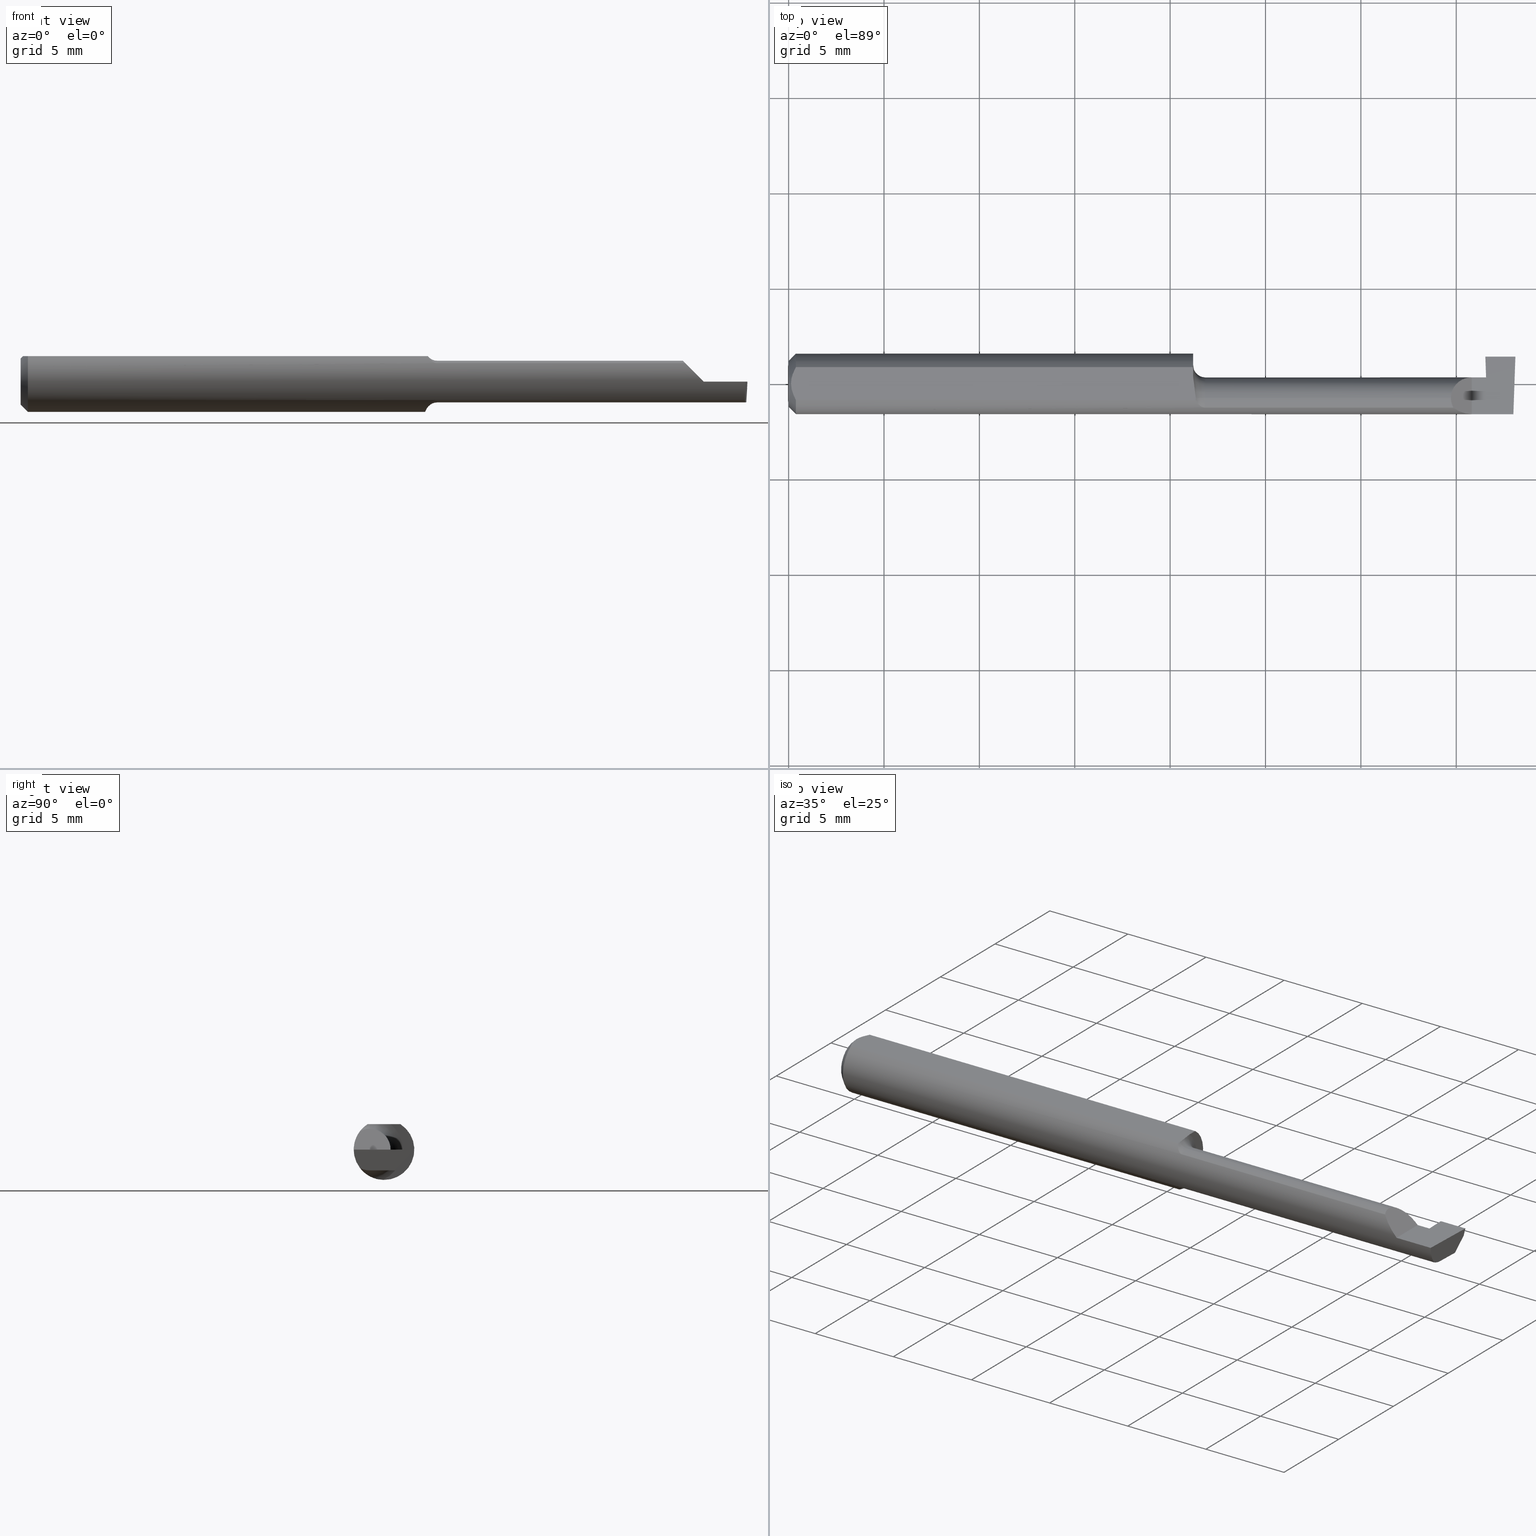
[diagram: canonical four-view strip — front | top / right | iso, engineering-drawing reading convention]
A machine part, canonical four-view strip (front | top / right | iso — engineering-drawing reading convention). The complete STEP part file that produces these views, byte-faithful:
ISO-10303-21;
HEADER;
FILE_DESCRIPTION (( 'STEP AP203' ),
    '1' );
FILE_NAME ('220569-GT061-10.STEP',
    '2024-07-17T22:18:53',
    ( '' ),
    ( '' ),
    'SwSTEP 2.0',
    'SolidWorks 2024',
    '' );
FILE_SCHEMA (( 'CONFIG_CONTROL_DESIGN' ));
ENDSEC;

DATA;
#1 = CARTESIAN_POINT ( 'NONE',  ( 0.8600000000000000977, -0.02949999999999999498, -0.06800000000000000488 ) ) ;
#2 = ORIENTED_EDGE ( 'NONE', *, *, #156, .F. ) ;
#3 = CALENDAR_DATE ( 2024, 17, 7 ) ;
#4 = CARTESIAN_POINT ( 'NONE',  ( 0.8403849547540666043, -0.03023591544404563569, 0.05250000000000001193 ) ) ;
#5 = ORIENTED_EDGE ( 'NONE', *, *, #592, .F. ) ;
#6 = EDGE_CURVE ( 'NONE', #213, #21, #562, .T. ) ;
#7 = DIRECTION ( 'NONE',  ( -1.000000000000000000, -0.000000000000000000, -0.000000000000000000 ) ) ;
#8 = CARTESIAN_POINT ( 'NONE',  ( 0.8600000000000000977, -0.02949999999999999498, -0.04299999999999998962 ) ) ;
#9 = CIRCLE ( 'NONE', #579, 0.06800000000000000488 ) ;
#10 = EDGE_LOOP ( 'NONE', ( #370, #89, #527, #91, #584 ) ) ;
#11 = DATE_AND_TIME ( #165, #715 ) ;
#12 = VECTOR ( 'NONE', #56, 39.37007874015748854 ) ;
#13 = VECTOR ( 'NONE', #289, 39.37007874015748854 ) ;
#14 = CARTESIAN_POINT ( 'NONE',  ( 0.8349999999999999645, -0.06250000000000001388, 0.05250000000000000500 ) ) ;
#15 = B_SPLINE_CURVE_WITH_KNOTS ( 'NONE', 3,
 ( #288, #283, #505, #170, #275, #552, #679, #543 ),
 .UNSPECIFIED., .F., .F.,
 ( 4, 2, 2, 4 ),
 ( 1.967049449814725034E-07, 0.0002302603140701875353, 0.0004603239231953935623, 0.0009204511414458118506 ),
 .UNSPECIFIED. ) ;
#16 = ORIENTED_EDGE ( 'NONE', *, *, #668, .T. ) ;
#17 = DATE_TIME_ROLE ( 'creation_date' ) ;
#18 = PLANE ( 'NONE',  #415 ) ;
#19 = CARTESIAN_POINT ( 'NONE',  ( 0.8349999999999998535, -0.007349427763250804095, -0.06224931325325608333 ) ) ;
#20 =( BOUNDED_CURVE ( )  B_SPLINE_CURVE ( 3, ( #385, #614, #506, #284 ),
 .UNSPECIFIED., .F., .F. ) 
 B_SPLINE_CURVE_WITH_KNOTS ( ( 4, 4 ),
 ( 6.273290845822960371, 6.925979714601155912 ),
 .UNSPECIFIED. ) 
 CURVE ( )  GEOMETRIC_REPRESENTATION_ITEM ( )  RATIONAL_B_SPLINE_CURVE ( ( 1.000000000000000000, 0.9648137202604427642, 0.9648137202604427642, 1.000000000000000000 ) ) 
 REPRESENTATION_ITEM ( '' )  );
#21 = VERTEX_POINT ( 'NONE', #647 ) ;
#22 = PLANE ( 'NONE',  #457 ) ;
#23 = CARTESIAN_POINT ( 'NONE',  ( 0.000000000000000000, 0.000000000000000000, 0.000000000000000000 ) ) ;
#24 = EDGE_LOOP ( 'NONE', ( #2, #666, #173, #227, #204, #621 ) ) ;
#25 = APPROVAL_PERSON_ORGANIZATION ( #282, #95, #245 ) ;
#26 = FACE_OUTER_BOUND ( 'NONE', #571, .T. ) ;
#27 = CYLINDRICAL_SURFACE ( 'NONE', #361, 0.04300000000000000350 ) ;
#28 = ORIENTED_EDGE ( 'NONE', *, *, #595, .F. ) ;
#29 = EDGE_CURVE ( 'NONE', #681, #83, #429, .T. ) ;
#30 =( LENGTH_UNIT ( ) NAMED_UNIT ( * ) SI_UNIT ( $, .METRE. ) );
#31 = DIRECTION ( 'NONE',  ( 0.000000000000000000, 0.000000000000000000, -1.000000000000000000 ) ) ;
#32 = ORIENTED_EDGE ( 'NONE', *, *, #585, .T. ) ;
#33 = ADVANCED_FACE ( 'NONE', ( #376 ), #125, .F. ) ;
#34 = AXIS2_PLACEMENT_3D ( 'NONE', #382, #425, #420 ) ;
#35 = CARTESIAN_POINT ( 'NONE',  ( 0.004999999999989314207, 8.235553591830799656E-16, 0.05250000000000000500 ) ) ;
#36 = ORIENTED_EDGE ( 'NONE', *, *, #396, .T. ) ;
#37 = AXIS2_PLACEMENT_3D ( 'NONE', #596, #535, #708 ) ;
#38 = CARTESIAN_POINT ( 'NONE',  ( 0.8403849547540671594, -0.02222494637838565504, 0.05250000000000000500 ) ) ;
#39 = VERTEX_POINT ( 'NONE', #110 ) ;
#40 = AXIS2_PLACEMENT_3D ( 'NONE', #687, #314, #201 ) ;
#41 = CARTESIAN_POINT ( 'NONE',  ( 1.500000000000000222, -0.06250000000000001388, 0.05250000000000000500 ) ) ;
#42 = VERTEX_POINT ( 'NONE', #321 ) ;
#43 = DIRECTION ( 'NONE',  ( -0.04472628571147610477, 0.3416778765727995215, 0.9387522506109683418 ) ) ;
#44 = EDGE_LOOP ( 'NONE', ( #519, #281, #629, #691, #578, #522 ) ) ;
#45 = AXIS2_PLACEMENT_3D ( 'NONE', #212, #480, #476 ) ;
#46 = CARTESIAN_POINT ( 'NONE',  ( 0.8349999999999999645, 0.03391164991562634068, 0.05250000000000000500 ) ) ;
#47 = EDGE_LOOP ( 'NONE', ( #685, #334, #587, #565 ) ) ;
#48 = EDGE_CURVE ( 'NONE', #497, #39, #481, .T. ) ;
#49 = CIRCLE ( 'NONE', #40, 0.06250000000000000000 ) ;
#50 = EDGE_CURVE ( 'NONE', #632, #462, #211, .T. ) ;
#51 = LINE ( 'NONE', #158, #324 ) ;
#52 = VERTEX_POINT ( 'NONE', #530 ) ;
#53 = CARTESIAN_POINT ( 'NONE',  ( 1.149000000000000021, -0.04961864406779661202, 0.03800315988011145063 ) ) ;
#54 = CARTESIAN_POINT ( 'NONE',  ( 0.8420045765340889998, -0.03797736612365415487, 0.04987380676756331122 ) ) ;
#55 = APPROVAL_DATE_TIME ( #625, #300 ) ;
#56 = DIRECTION ( 'NONE',  ( -0.03487823687994841271, 0.9993915692020550745, -0.000000000000000000 ) ) ;
#57 = VECTOR ( 'NONE', #118, 39.37007874015748143 ) ;
#58 = LINE ( 'NONE', #62, #659 ) ;
#59 = ADVANCED_FACE ( 'NONE', ( #266 ), #162, .F. ) ;
#60 = CYLINDRICAL_SURFACE ( 'NONE', #353, 0.04300000000000000350 ) ;
#61 = PERSON_AND_ORGANIZATION ( #253, #551 ) ;
#62 = CARTESIAN_POINT ( 'NONE',  ( 1.438572945335922615, 0.05275141290272146455, -0.01265300381755170116 ) ) ;
#63 = PLANE ( 'NONE',  #108 ) ;
#64 = ORIENTED_EDGE ( 'NONE', *, *, #191, .F. ) ;
#65 = PERSON_AND_ORGANIZATION ( #253, #551 ) ;
#66 = DIRECTION ( 'NONE',  ( 0.03489949670250192676, 0.9993908270190955401, -4.271027038988480103E-18 ) ) ;
#67 = DIRECTION ( 'NONE',  ( 0.000000000000000000, 0.000000000000000000, 1.000000000000000000 ) ) ;
#68 = APPLICATION_CONTEXT ( 'configuration controlled 3d designs of mechanical parts and assemblies' ) ;
#69 = CC_DESIGN_PERSON_AND_ORGANIZATION_ASSIGNMENT ( #617, #561, ( #316 ) ) ;
#70 = PERSON_AND_ORGANIZATION_ROLE ( 'design_owner' ) ;
#71 = AXIS2_PLACEMENT_3D ( 'NONE', #135, #132, #143 ) ;
#72 = ADVANCED_FACE ( 'NONE', ( #564 ), #60, .T. ) ;
#73 = AXIS2_PLACEMENT_3D ( 'NONE', #136, #523, #311 ) ;
#74 = DIRECTION ( 'NONE',  ( -1.000000000000000000, -0.000000000000000000, -0.000000000000000000 ) ) ;
#75 =( BOUNDED_CURVE ( )  B_SPLINE_CURVE ( 3, ( #711, #218, #377, #655 ),
 .UNSPECIFIED., .F., .T. ) 
 B_SPLINE_CURVE_WITH_KNOTS ( ( 4, 4 ),
 ( 5.796299966638533974, 6.283185307179586232 ),
 .UNSPECIFIED. ) 
 CURVE ( )  GEOMETRIC_REPRESENTATION_ITEM ( )  RATIONAL_B_SPLINE_CURVE ( ( 1.000000000000000000, 0.9803425923803470443, 0.9803425923803470443, 1.000000000000000000 ) ) 
 REPRESENTATION_ITEM ( '' )  );
#76 = EDGE_LOOP ( 'NONE', ( #140, #117, #290, #544 ) ) ;
#77 = DIRECTION ( 'NONE',  ( 0.000000000000000000, 0.000000000000000000, -1.000000000000000000 ) ) ;
#78 = CARTESIAN_POINT ( 'NONE',  ( 1.498486040240527339, 0.04540978652448672548, -0.04300000000000001044 ) ) ;
#79 = VERTEX_POINT ( 'NONE', #172 ) ;
#80 = CARTESIAN_POINT ( 'NONE',  ( 1.400000000000000133, 0.05650000000000000161, -7.164183775012044310E-19 ) ) ;
#81 = CARTESIAN_POINT ( 'NONE',  ( 1.498691949899088494, 0.05654567811605757527, -0.04998286624877788104 ) ) ;
#82 = EDGE_CURVE ( 'NONE', #126, #593, #511, .T. ) ;
#83 = VERTEX_POINT ( 'NONE', #222 ) ;
#84 = AXIS2_PLACEMENT_3D ( 'NONE', #151, #371, #373 ) ;
#85 = DESIGN_CONTEXT ( 'detailed design', #651, 'design' ) ;
#86 = DIRECTION ( 'NONE',  ( -0.7071067811865461294, 0.000000000000000000, 0.7071067811865489050 ) ) ;
#87 = CARTESIAN_POINT ( 'NONE',  ( 2.249639673992780117E-32, -0.06250000000000000000, 1.836970198721027469E-16 ) ) ;
#88 = EDGE_CURVE ( 'NONE', #475, #39, #435, .T. ) ;
#89 = ORIENTED_EDGE ( 'NONE', *, *, #640, .F. ) ;
#90 = PLANE ( 'NONE',  #470 ) ;
#91 = ORIENTED_EDGE ( 'NONE', *, *, #29, .T. ) ;
#92 = CARTESIAN_POINT ( 'NONE',  ( 0.8352519097259802905, -0.01202796067517315250, -0.06151168109569451342 ) ) ;
#93 = ORIENTED_EDGE ( 'NONE', *, *, #274, .F. ) ;
#94 =( BOUNDED_CURVE ( )  B_SPLINE_CURVE ( 3, ( #472, #272, #419, #427 ),
 .UNSPECIFIED., .F., .T. ) 
 B_SPLINE_CURVE_WITH_KNOTS ( ( 4, 4 ),
 ( 4.712388980384689674, 5.365991724391927953 ),
 .UNSPECIFIED. ) 
 CURVE ( )  GEOMETRIC_REPRESENTATION_ITEM ( )  RATIONAL_B_SPLINE_CURVE ( ( 1.000000000000000000, 0.9647159968557095233, 0.9647159968557095233, 1.000000000000000000 ) ) 
 REPRESENTATION_ITEM ( '' )  );
#95 = APPROVAL ( #387, 'UNSPECIFIED' ) ;
#96 = VECTOR ( 'NONE', #516, 39.37007874015748143 ) ;
#97 = CARTESIAN_POINT ( 'NONE',  ( 0.01499999999999999944, 0.000000000000000000, 0.000000000000000000 ) ) ;
#98 = CARTESIAN_POINT ( 'NONE',  ( 0.8573935569295082493, -0.04961864406782530434, 0.03800315988007407081 ) ) ;
#99 = CARTESIAN_POINT ( 'NONE',  ( 0.8362098179869770220, -0.0002889899750472457642, 0.05250000000000001193 ) ) ;
#100 = VERTEX_POINT ( 'NONE', #390 ) ;
#101 = DIRECTION ( 'NONE',  ( 1.000000000000000000, 0.000000000000000000, -0.000000000000000000 ) ) ;
#102 = ADVANCED_FACE ( 'NONE', ( #623 ), #609, .F. ) ;
#103 = ORIENTED_EDGE ( 'NONE', *, *, #560, .T. ) ;
#104 = EDGE_CURVE ( 'NONE', #194, #374, #662, .T. ) ;
#105 = VECTOR ( 'NONE', #375, 39.37007874015748143 ) ;
#106 = DIRECTION ( 'NONE',  ( 0.000000000000000000, 0.000000000000000000, -1.000000000000000000 ) ) ;
#107 = ORIENTED_EDGE ( 'NONE', *, *, #619, .F. ) ;
#108 = AXIS2_PLACEMENT_3D ( 'NONE', #347, #247, #366 ) ;
#109 = CARTESIAN_POINT ( 'NONE',  ( 0.8350000000000000755, 0.006622688445287742282, 0.05250000000000000500 ) ) ;
#110 = CARTESIAN_POINT ( 'NONE',  ( 1.497682675024521792, 0.02240441672027304598, -0.04300000000000001044 ) ) ;
#111 = LINE ( 'NONE', #53, #648 ) ;
#112 = DIRECTION ( 'NONE',  ( 0.02616100201822768243, -0.0009135623211514313276, 0.9996573249755575929 ) ) ;
#113 = ORIENTED_EDGE ( 'NONE', *, *, #215, .T. ) ;
#114 = DIRECTION ( 'NONE',  ( 0.000000000000000000, 0.000000000000000000, 1.000000000000000000 ) ) ;
#115 = CARTESIAN_POINT ( 'NONE',  ( 1.367000000000000215, -0.004311183182043082547, 0.04300000000000000350 ) ) ;
#116 = LOCAL_TIME ( 15, 18, 53.00000000000000000, #169 ) ;
#117 = ORIENTED_EDGE ( 'NONE', *, *, #367, .F. ) ;
#118 = DIRECTION ( 'NONE',  ( 0.7071067811865474617, 8.659560562354934091E-17, 0.7071067811865475727 ) ) ;
#119 = CARTESIAN_POINT ( 'NONE',  ( 1.495623993172869648, -0.03654851821258212063, -0.04300000000000001044 ) ) ;
#120 = ORIENTED_EDGE ( 'NONE', *, *, #482, .F. ) ;
#121 = APPROVAL_DATE_TIME ( #11, #95 ) ;
#122 = CARTESIAN_POINT ( 'NONE',  ( 1.495842932763845390, -0.06249997390100387601, -5.711719386471155157E-05 ) ) ;
#123 = DIRECTION ( 'NONE',  ( 0.000000000000000000, 0.000000000000000000, 1.000000000000000000 ) ) ;
#124 = EDGE_CURVE ( 'NONE', #681, #549, #20, .T. ) ;
#125 = TOROIDAL_SURFACE ( 'NONE', #313, 0.06800000000000000488, 0.02500000000000007078 ) ;
#126 = VERTEX_POINT ( 'NONE', #167 ) ;
#127 = UNCERTAINTY_MEASURE_WITH_UNIT (LENGTH_MEASURE( 1.000000000000000082E-05 ), #568, 'distance_accuracy_value', 'NONE');
#128 = CARTESIAN_POINT ( 'NONE',  ( 1.409999999999999920, 0.01349999999999997209, 1.102182119232617911E-17 ) ) ;
#129 = ORIENTED_EDGE ( 'NONE', *, *, #704, .T. ) ;
#130 = MECHANICAL_CONTEXT ( 'NONE', #68, 'mechanical' ) ;
#131 = LOCAL_TIME ( 15, 18, 53.00000000000000000, #566 ) ;
#132 = DIRECTION ( 'NONE',  ( -1.224646799147351482E-16, 0.000000000000000000, -1.000000000000000000 ) ) ;
#133 = DIRECTION ( 'NONE',  ( -0.03489949670250192676, -0.9993908270190955401, 0.000000000000000000 ) ) ;
#134 = EDGE_LOOP ( 'NONE', ( #677, #129, #542, #306, #408, #256 ) ) ;
#135 = CARTESIAN_POINT ( 'NONE',  ( 1.500000000000000222, -0.1000000000000000056, 0.000000000000000000 ) ) ;
#136 = CARTESIAN_POINT ( 'NONE',  ( 0.8600000000000000977, -0.02950000000000000192, 0.000000000000000000 ) ) ;
#137 = ORIENTED_EDGE ( 'NONE', *, *, #214, .T. ) ;
#138 = CARTESIAN_POINT ( 'NONE',  ( 1.440999524473455917, -0.02950000000000000192, -0.04300000000000001044 ) ) ;
#139 = DIRECTION ( 'NONE',  ( -0.03654090288697374456, -0.3417917279781193529, -0.9390650547762576794 ) ) ;
#140 = ORIENTED_EDGE ( 'NONE', *, *, #410, .F. ) ;
#141 = VECTOR ( 'NONE', #653, 39.37007874015748143 ) ;
#142 = CC_DESIGN_APPROVAL ( #684, ( #539 ) ) ;
#143 = DIRECTION ( 'NONE',  ( -1.000000000000000000, 0.000000000000000000, 1.224646799147351482E-16 ) ) ;
#144 = CARTESIAN_POINT ( 'NONE',  ( 1.439500677244090587, 0.01349999999999997556, 1.224154007838117759E-17 ) ) ;
#145 = VECTOR ( 'NONE', #496, 39.37007874015748143 ) ;
#146 = ORIENTED_EDGE ( 'NONE', *, *, #410, .T. ) ;
#147 = CARTESIAN_POINT ( 'NONE',  ( 0.006056885874551373727, -0.01188654981375985957, 0.05250000000000001193 ) ) ;
#148 = ORIENTED_EDGE ( 'NONE', *, *, #367, .T. ) ;
#149 = CC_DESIGN_DATE_AND_TIME_ASSIGNMENT ( #233, #17, ( #545 ) ) ;
#150 =( BOUNDED_CURVE ( )  B_SPLINE_CURVE ( 3, ( #138, #513, #510, #254 ),
 .UNSPECIFIED., .F., .T. ) 
 B_SPLINE_CURVE_WITH_KNOTS ( ( 4, 4 ),
 ( 3.140373936913448016, 4.711170263708344130 ),
 .UNSPECIFIED. ) 
 CURVE ( )  GEOMETRIC_REPRESENTATION_ITEM ( )  RATIONAL_B_SPLINE_CURVE ( ( 1.000000000000000000, 0.8047378541243650485, 0.8047378541243650485, 1.000000000000000000 ) ) 
 REPRESENTATION_ITEM ( '' )  );
#151 = CARTESIAN_POINT ( 'NONE',  ( 0.8350000000000000755, -0.02950000000000000192, 0.000000000000000000 ) ) ;
#152 = ORIENTED_EDGE ( 'NONE', *, *, #560, .F. ) ;
#153 = AXIS2_PLACEMENT_3D ( 'NONE', #293, #556, #114 ) ;
#154 = DIRECTION ( 'NONE',  ( -1.000000000000000000, -0.000000000000000000, -0.000000000000000000 ) ) ;
#155 = CARTESIAN_POINT ( 'NONE',  ( 1.400000000000000133, 0.05650000000000000161, -7.164183775012044310E-19 ) ) ;
#156 = EDGE_CURVE ( 'NONE', #52, #168, #203, .T. ) ;
#157 = ORIENTED_EDGE ( 'NONE', *, *, #388, .T. ) ;
#158 = CARTESIAN_POINT ( 'NONE',  ( 0.000000000000000000, -0.03391164991562636150, 0.05249999999999998418 ) ) ;
#159 = ORIENTED_EDGE ( 'NONE', *, *, #234, .F. ) ;
#160 = PLANE ( 'NONE',  #45 ) ;
#161 = CARTESIAN_POINT ( 'NONE',  ( 0.8600000000000000977, -0.02950000000000000192, 0.000000000000000000 ) ) ;
#162 = TOROIDAL_SURFACE ( 'NONE', #661, 0.06800000000000000488, 0.02500000000000007078 ) ;
#163 = DIRECTION ( 'NONE',  ( -0.000000000000000000, 0.000000000000000000, 1.000000000000000000 ) ) ;
#164 = CARTESIAN_POINT ( 'NONE',  ( 1.438000000000000167, 0.05650000000000000161, -7.164183775012044310E-19 ) ) ;
#165 = CALENDAR_DATE ( 2024, 17, 7 ) ;
#166 = CARTESIAN_POINT ( 'NONE',  ( 1.500000000000000222, 0.04535691788470638808, -0.04300000000000001044 ) ) ;
#167 = CARTESIAN_POINT ( 'NONE',  ( 1.440999524473455917, -0.02950000000000000192, -0.04300000000000001044 ) ) ;
#168 = VERTEX_POINT ( 'NONE', #8 ) ;
#169 = COORDINATED_UNIVERSAL_TIME_OFFSET ( 8, 0, .BEHIND. ) ;
#170 = CARTESIAN_POINT ( 'NONE',  ( 0.8493582107592305697, -0.04628042898199348498, -0.04204840831133670881 ) ) ;
#171 = AXIS2_PLACEMENT_3D ( 'NONE', #97, #591, #106 ) ;
#172 = CARTESIAN_POINT ( 'NONE',  ( 1.371996840119888761, -0.04961864406779655651, 0.03800315988011148532 ) ) ;
#173 = ORIENTED_EDGE ( 'NONE', *, *, #426, .F. ) ;
#174 = CARTESIAN_POINT ( 'NONE',  ( 0.004999999999999040802, 0.005952453510029875015, 0.05249999999999999806 ) ) ;
#175 = EDGE_CURVE ( 'NONE', #611, #296, #607, .T. ) ;
#176 = CARTESIAN_POINT ( 'NONE',  ( 0.8349999999999999645, 0.01371747331809206050, 0.05250000000000000500 ) ) ;
#177 = EDGE_CURVE ( 'NONE', #21, #414, #342, .T. ) ;
#178 = ORIENTED_EDGE ( 'NONE', *, *, #50, .F. ) ;
#179 = APPROVAL_STATUS ( 'not_yet_approved' ) ;
#180 = CYLINDRICAL_SURFACE ( 'NONE', #401, 0.06250000000000000000 ) ;
#181 = ADVANCED_FACE ( 'NONE', ( #676 ), #508, .F. ) ;
#182 = DIRECTION ( 'NONE',  ( -0.000000000000000000, 1.000000000000000000, 0.000000000000000000 ) ) ;
#183 = ORIENTED_EDGE ( 'NONE', *, *, #104, .F. ) ;
#184 = CARTESIAN_POINT ( 'NONE',  ( 0.8349999999999999645, 0.1134999999999999620, 0.000000000000000000 ) ) ;
#185 = CARTESIAN_POINT ( 'NONE',  ( 0.01499999999999999944, 0.000000000000000000, 0.000000000000000000 ) ) ;
#186 = VERTEX_POINT ( 'NONE', #237 ) ;
#187 = LOCAL_TIME ( 15, 18, 53.00000000000000000, #228 ) ;
#188 = CARTESIAN_POINT ( 'NONE',  ( 0.8403849547540671594, -0.02950000000000013375, 0.05250000000000000500 ) ) ;
#189 = DIRECTION ( 'NONE',  ( -1.000000000000000000, -0.000000000000000000, -0.000000000000000000 ) ) ;
#190 = VERTEX_POINT ( 'NONE', #164 ) ;
#191 = EDGE_CURVE ( 'NONE', #549, #312, #298, .T. ) ;
#192 = FACE_OUTER_BOUND ( 'NONE', #44, .T. ) ;
#193 = DIRECTION ( 'NONE',  ( -1.000000000000000000, -0.000000000000000000, -0.000000000000000000 ) ) ;
#194 = VERTEX_POINT ( 'NONE', #176 ) ;
#195 = DIMENSIONAL_EXPONENTS ( 1.000000000000000000, 0.000000000000000000, 0.000000000000000000, 0.000000000000000000, 0.000000000000000000, 0.000000000000000000, 0.000000000000000000 ) ;
#196 = CARTESIAN_POINT ( 'NONE',  ( 1.495298500941084185, -0.04961864406779661202, -0.03800315988011145063 ) ) ;
#197 = CARTESIAN_POINT ( 'NONE',  ( 0.8349999999999999645, -0.002584745762711872230, -0.06244652984227500730 ) ) ;
#198 = ORIENTED_EDGE ( 'NONE', *, *, #426, .T. ) ;
#199 = AXIS2_PLACEMENT_3D ( 'NONE', #41, #265, #101 ) ;
#200 = CC_DESIGN_PERSON_AND_ORGANIZATION_ASSIGNMENT ( #452, #682, ( #316 ) ) ;
#201 = DIRECTION ( 'NONE',  ( 0.000000000000000000, 0.000000000000000000, -1.000000000000000000 ) ) ;
#202 = EDGE_CURVE ( 'NONE', #681, #582, #317, .T. ) ;
#203 = CIRCLE ( 'NONE', #448, 0.02500000000000007425 ) ;
#204 = ORIENTED_EDGE ( 'NONE', *, *, #482, .T. ) ;
#205 = FACE_OUTER_BOUND ( 'NONE', #134, .T. ) ;
#206 = EDGE_LOOP ( 'NONE', ( #302, #351, #422, #466, #252 ) ) ;
#207 = DIRECTION ( 'NONE',  ( 1.000000000000000000, -0.000000000000000000, -0.000000000000000000 ) ) ;
#208 = VERTEX_POINT ( 'NONE', #226 ) ;
#209 = AXIS2_PLACEMENT_3D ( 'NONE', #417, #193, #642 ) ;
#210 = ADVANCED_FACE ( 'NONE', ( #557 ), #63, .F. ) ;
#211 = B_SPLINE_CURVE_WITH_KNOTS ( 'NONE', 3,
 ( #709, #54, #276, #488, #372, #589, #98, #319 ),
 .UNSPECIFIED., .F., .F.,
 ( 4, 2, 2, 4 ),
 ( 3.888235372658501606E-07, 0.0003893917635814275247, 0.0005838932336035082158, 0.0007783947036255888527 ),
 .UNSPECIFIED. ) ;
#212 = CARTESIAN_POINT ( 'NONE',  ( 1.400000000000000133, 0.05140441672027315501, -0.01400000000000000203 ) ) ;
#213 = VERTEX_POINT ( 'NONE', #467 ) ;
#214 = EDGE_CURVE ( 'NONE', #611, #42, #517, .T. ) ;
#215 = EDGE_CURVE ( 'NONE', #168, #83, #297, .T. ) ;
#216 = CARTESIAN_POINT ( 'NONE',  ( 1.440692425072330529, 0.02240441672027304251, -0.04300000000000001044 ) ) ;
#217 = ORIENTED_EDGE ( 'NONE', *, *, #48, .F. ) ;
#218 = CARTESIAN_POINT ( 'NONE',  ( 1.368699011535602361, -0.04338920303173529613, 0.04130098846439799604 ) ) ;
#219 = ORIENTED_EDGE ( 'NONE', *, *, #615, .F. ) ;
#220 = CARTESIAN_POINT ( 'NONE',  ( 0.000000000000000000, 0.000000000000000000, 0.000000000000000000 ) ) ;
#221 = VECTOR ( 'NONE', #686, 39.37007874015748143 ) ;
#222 = CARTESIAN_POINT ( 'NONE',  ( 0.8600000000000000977, -0.04961864406779661202, -0.03800315988011145063 ) ) ;
#223 = CALENDAR_DATE ( 2024, 17, 7 ) ;
#224 = PRODUCT ( '220569-GT061-10', '220569-GT061-10', '', ( #130 ) ) ;
#225 = LINE ( 'NONE', #243, #638 ) ;
#226 = CARTESIAN_POINT ( 'NONE',  ( 0.004999999999989314207, 8.235553591830799656E-16, 0.05250000000000000500 ) ) ;
#227 = ORIENTED_EDGE ( 'NONE', *, *, #388, .F. ) ;
#228 = COORDINATED_UNIVERSAL_TIME_OFFSET ( 8, 0, .BEHIND. ) ;
#229 = CARTESIAN_POINT ( 'NONE',  ( 0.8402401474686986838, -0.03391164991562650721, 0.05250000000000000500 ) ) ;
#230 = CARTESIAN_POINT ( 'NONE',  ( 1.495298500941084185, -0.04961864406779661202, -0.03800315988011145063 ) ) ;
#231 = PRODUCT_DEFINITION_SHAPE ( 'NONE', 'NONE',  #545 ) ;
#232 = ORIENTED_EDGE ( 'NONE', *, *, #310, .T. ) ;
#233 = DATE_AND_TIME ( #3, #116 ) ;
#234 = EDGE_CURVE ( 'NONE', #258, #374, #49, .T. ) ;
#235 = FACE_OUTER_BOUND ( 'NONE', #493, .T. ) ;
#236 = AXIS2_PLACEMENT_3D ( 'NONE', #185, #362, #400 ) ;
#237 = CARTESIAN_POINT ( 'NONE',  ( 1.499999999999999778, 0.05649999999999998079, -1.357920535913193309E-16 ) ) ;
#238 = AXIS2_PLACEMENT_3D ( 'NONE', #166, #163, #618 ) ;
#239 = ORIENTED_EDGE ( 'NONE', *, *, #88, .F. ) ;
#240 = CARTESIAN_POINT ( 'NONE',  ( 0.000000000000000000, 0.000000000000000000, 0.000000000000000000 ) ) ;
#241 = EDGE_CURVE ( 'NONE', #208, #500, #413, .T. ) ;
#242 = AXIS2_PLACEMENT_3D ( 'NONE', #161, #521, #260 ) ;
#243 = CARTESIAN_POINT ( 'NONE',  ( 1.494541555929521870, -0.09980938693283122887, 6.684666059235883717E-19 ) ) ;
#244 = DIRECTION ( 'NONE',  ( 0.7071067811865474617, 0.000000000000000000, -0.7071067811865475727 ) ) ;
#245 = APPROVAL_ROLE ( '' ) ;
#246 =( NAMED_UNIT ( * ) PLANE_ANGLE_UNIT ( ) SI_UNIT ( $, .RADIAN. ) );
#247 = DIRECTION ( 'NONE',  ( 0.9987827668610290699, 0.03485699000042918883, 0.03489949669461413218 ) ) ;
#248 = EDGE_LOOP ( 'NONE', ( #16, #368, #635 ) ) ;
#249 = DIRECTION ( 'NONE',  ( 0.000000000000000000, -0.9396926207859082059, 0.3420201433256693235 ) ) ;
#250 = CARTESIAN_POINT ( 'NONE',  ( 1.409999999999999920, 0.01349999999999997209, 1.102182119232617911E-17 ) ) ;
#251 = EDGE_CURVE ( 'NONE', #42, #168, #541, .T. ) ;
#252 = ORIENTED_EDGE ( 'NONE', *, *, #241, .F. ) ;
#253 = PERSON ( 'UNSPECIFIED', 'UNSPECIFIED', 'UNSPECIFIED', ('UNSPECIFIED'), ('UNSPECIFIED'), ('UNSPECIFIED') ) ;
#254 = CARTESIAN_POINT ( 'NONE',  ( 1.439500677244090587, 0.01349999999999997556, 1.224154007838117759E-17 ) ) ;
#255 = CARTESIAN_POINT ( 'NONE',  ( 0.8350000000000000755, -0.02950000000000000192, 0.000000000000000000 ) ) ;
#256 = ORIENTED_EDGE ( 'NONE', *, *, #674, .T. ) ;
#257 = CARTESIAN_POINT ( 'NONE',  ( 1.438667021569911331, 0.05140441672027315501, -0.01399999999999999856 ) ) ;
#258 = VERTEX_POINT ( 'NONE', #461 ) ;
#259 = ADVANCED_FACE ( 'NONE', ( #369 ), #90, .F. ) ;
#260 = DIRECTION ( 'NONE',  ( 0.000000000000000000, 0.000000000000000000, 1.000000000000000000 ) ) ;
#261 = ORIENTED_EDGE ( 'NONE', *, *, #309, .F. ) ;
#262 = CARTESIAN_POINT ( 'NONE',  ( 0.8349999999999999645, 0.01371747331809206050, 0.05250000000000000500 ) ) ;
#263 = VECTOR ( 'NONE', #182, 39.37007874015748143 ) ;
#264 = EDGE_LOOP ( 'NONE', ( #364, #394, #217, #432 ) ) ;
#265 = DIRECTION ( 'NONE',  ( 0.000000000000000000, -0.000000000000000000, 1.000000000000000000 ) ) ;
#266 = FACE_OUTER_BOUND ( 'NONE', #533, .T. ) ;
#267 = ORIENTED_EDGE ( 'NONE', *, *, #50, .T. ) ;
#268 = ADVANCED_FACE ( 'NONE', ( #577 ), #27, .T. ) ;
#269 = AXIS2_PLACEMENT_3D ( 'NONE', #23, #456, #31 ) ;
#270 = FACE_OUTER_BOUND ( 'NONE', #707, .T. ) ;
#271 = CARTESIAN_POINT ( 'NONE',  ( 0.8600000000000000977, -0.02950000000000000192, 0.000000000000000000 ) ) ;
#272 = CARTESIAN_POINT ( 'NONE',  ( 1.396135153618661251, -0.06250000000000001388, 0.01386484638133879746 ) ) ;
#273 = ORIENTED_EDGE ( 'NONE', *, *, #6, .F. ) ;
#274 = EDGE_CURVE ( 'NONE', #414, #500, #610, .T. ) ;
#275 = CARTESIAN_POINT ( 'NONE',  ( 0.8474551391321255567, -0.04467521257567296650, -0.04378099277185587557 ) ) ;
#276 = CARTESIAN_POINT ( 'NONE',  ( 0.8442468641874942836, -0.04154820402037479737, 0.04686879970594851064 ) ) ;
#277 = COORDINATED_UNIVERSAL_TIME_OFFSET ( 8, 0, .BEHIND. ) ;
#278 = LINE ( 'NONE', #563, #57 ) ;
#279 = LOCAL_TIME ( 15, 18, 53.00000000000000000, #277 ) ;
#280 = CARTESIAN_POINT ( 'NONE',  ( 0.8350000000000000755, -0.02950000000000000192, 0.000000000000000000 ) ) ;
#281 = ORIENTED_EDGE ( 'NONE', *, *, #592, .T. ) ;
#282 = PERSON_AND_ORGANIZATION ( #253, #551 ) ;
#283 = CARTESIAN_POINT ( 'NONE',  ( 0.8569304295622108825, -0.04961864406779671610, -0.03800315988011131185 ) ) ;
#284 = CARTESIAN_POINT ( 'NONE',  ( 1.495842932763845390, -0.06249997390100387601, -5.711719386471155157E-05 ) ) ;
#285 = ORIENTED_EDGE ( 'NONE', *, *, #615, .T. ) ;
#286 = EDGE_CURVE ( 'NONE', #52, #258, #444, .T. ) ;
#287 = APPROVAL_DATE_TIME ( #436, #684 ) ;
#288 = CARTESIAN_POINT ( 'NONE',  ( 0.8600000000000000977, -0.04961864406779661202, -0.03800315988011145063 ) ) ;
#289 = DIRECTION ( 'NONE',  ( 4.253255647400300472E-05, 0.9999999990954908657, 0.000000000000000000 ) ) ;
#290 = ORIENTED_EDGE ( 'NONE', *, *, #538, .T. ) ;
#291 = EDGE_CURVE ( 'NONE', #186, #475, #407, .T. ) ;
#292 = DIRECTION ( 'NONE',  ( 1.000000000000000000, 0.000000000000000000, 0.000000000000000000 ) ) ;
#293 = CARTESIAN_POINT ( 'NONE',  ( 0.8600000000000000977, -0.02950000000000000192, 0.000000000000000000 ) ) ;
#294 = DIRECTION ( 'NONE',  ( -1.000000000000000000, -0.000000000000000000, -0.000000000000000000 ) ) ;
#295 = AXIS2_PLACEMENT_3D ( 'NONE', #303, #580, #86 ) ;
#296 = VERTEX_POINT ( 'NONE', #250 ) ;
#297 = CIRCLE ( 'NONE', #73, 0.04300000000000000350 ) ;
#298 = LINE ( 'NONE', #605, #416 ) ;
#299 = EDGE_LOOP ( 'NONE', ( #458, #554, #239, #418, #5, #64, #308 ) ) ;
#300 = APPROVAL ( #179, 'UNSPECIFIED' ) ;
#301 = PLANE ( 'NONE',  #269 ) ;
#302 = ORIENTED_EDGE ( 'NONE', *, *, #534, .F. ) ;
#303 = CARTESIAN_POINT ( 'NONE',  ( 1.409999999999999920, -0.1000000000000000056, 1.102182119232617911E-17 ) ) ;
#304 = VECTOR ( 'NONE', #307, 39.37007874015748143 ) ;
#305 = DIRECTION ( 'NONE',  ( -0.9990483607430195034, 0.03488753751661637786, 0.02617694830785934762 ) ) ;
#306 = ORIENTED_EDGE ( 'NONE', *, *, #214, .F. ) ;
#307 = DIRECTION ( 'NONE',  ( -1.000000000000000000, -0.000000000000000000, -0.000000000000000000 ) ) ;
#308 = ORIENTED_EDGE ( 'NONE', *, *, #124, .F. ) ;
#309 = EDGE_CURVE ( 'NONE', #537, #414, #536, .T. ) ;
#310 = EDGE_CURVE ( 'NONE', #312, #100, #581, .T. ) ;
#311 = DIRECTION ( 'NONE',  ( 0.000000000000000000, 0.000000000000000000, 1.000000000000000000 ) ) ;
#312 = VERTEX_POINT ( 'NONE', #628 ) ;
#313 = AXIS2_PLACEMENT_3D ( 'NONE', #271, #154, #602 ) ;
#314 = DIRECTION ( 'NONE',  ( 1.000000000000000000, 0.000000000000000000, 0.000000000000000000 ) ) ;
#315 = ORIENTED_EDGE ( 'NONE', *, *, #156, .T. ) ;
#316 = PRODUCT_DEFINITION_FORMATION_WITH_SPECIFIED_SOURCE ( 'ANY', '', #224, .NOT_KNOWN. ) ;
#317 =( BOUNDED_CURVE ( )  B_SPLINE_CURVE ( 3, ( #230, #439, #119, #393 ),
 .UNSPECIFIED., .F., .T. ) 
 B_SPLINE_CURVE_WITH_KNOTS ( ( 4, 4 ),
 ( 0.4402027036032312712, 0.9270880441442851394 ),
 .UNSPECIFIED. ) 
 CURVE ( )  GEOMETRIC_REPRESENTATION_ITEM ( )  RATIONAL_B_SPLINE_CURVE ( ( 1.000000000000000000, 0.9803425923803469333, 0.9803425923803469333, 1.000000000000000000 ) ) 
 REPRESENTATION_ITEM ( '' )  );
#318 = CARTESIAN_POINT ( 'NONE',  ( 0.8349999999999999645, -0.02950000000000000192, 0.000000000000000000 ) ) ;
#319 = CARTESIAN_POINT ( 'NONE',  ( 0.8600000000000000977, -0.04961864406779661202, 0.03800315988011145063 ) ) ;
#320 = LINE ( 'NONE', #597, #443 ) ;
#321 = CARTESIAN_POINT ( 'NONE',  ( 0.8600000000000000977, -0.02950000000000000192, 0.04299999999999998962 ) ) ;
#322 = DIRECTION ( 'NONE',  ( 1.000000000000000000, 0.000000000000000000, 0.000000000000000000 ) ) ;
#323 = DIRECTION ( 'NONE',  ( 1.000000000000000000, 0.000000000000000000, 0.000000000000000000 ) ) ;
#324 = VECTOR ( 'NONE', #322, 39.37007874015748143 ) ;
#325 = CARTESIAN_POINT ( 'NONE',  ( 0.8390045281090320328, -0.01491326039667821048, 0.05250000000000001193 ) ) ;
#326 = ORIENTED_EDGE ( 'NONE', *, *, #464, .F. ) ;
#327 = CIRCLE ( 'NONE', #37, 0.02500000000000007425 ) ;
#328 = CC_DESIGN_PERSON_AND_ORGANIZATION_ASSIGNMENT ( #509, #494, ( #545 ) ) ;
#329 = EDGE_CURVE ( 'NONE', #39, #582, #412, .T. ) ;
#330 = CARTESIAN_POINT ( 'NONE',  ( 1.441001355602298251, 0.01355240484302818599, -0.04300000000000002431 ) ) ;
#331 = CARTESIAN_POINT ( 'NONE',  ( 1.500000000000000222, 0.02240441672027303557, -0.04300000000000001044 ) ) ;
#332 = CARTESIAN_POINT ( 'NONE',  ( 0.8402401474686986838, -0.03391164991562650721, 0.05250000000000000500 ) ) ;
#333 = DIRECTION ( 'NONE',  ( 0.03487821100177017353, 0.000000000000000000, -0.9993915701051895306 ) ) ;
#334 = ORIENTED_EDGE ( 'NONE', *, *, #291, .T. ) ;
#335 = APPLICATION_PROTOCOL_DEFINITION ( 'international standard', 'config_control_design', 1994, #68 ) ;
#336 = CARTESIAN_POINT ( 'NONE',  ( 1.367000000000000215, -0.02950000000000000192, 0.04300000000000000350 ) ) ;
#337 = CARTESIAN_POINT ( 'NONE',  ( 1.384811183182043548, 0.01350000000000000332, 0.02518881681795692024 ) ) ;
#338 = ADVANCED_FACE ( 'NONE', ( #574 ), #301, .F. ) ;
#339 = VERTEX_POINT ( 'NONE', #257 ) ;
#340 = CARTESIAN_POINT ( 'NONE',  ( 0.8403604307877770019, -0.03170709554003017100, 0.05249999999999999806 ) ) ;
#341 = EDGE_CURVE ( 'NONE', #190, #356, #465, .T. ) ;
#342 = LINE ( 'NONE', #570, #383 ) ;
#343 = B_SPLINE_CURVE_WITH_KNOTS ( 'NONE', 3,
 ( #588, #38, #325, #99, #109, #262 ),
 .UNSPECIFIED., .F., .F.,
 ( 4, 2, 4 ),
 ( 0.008344303586568494260, 0.008884272709220805697, 0.009424241831873118869 ),
 .UNSPECIFIED. ) ;
#344 = ORIENTED_EDGE ( 'NONE', *, *, #241, .T. ) ;
#345 = PERSON_AND_ORGANIZATION ( #253, #551 ) ;
#346 = CARTESIAN_POINT ( 'NONE',  ( 0.004999999999989314207, 8.235553591830799656E-16, 0.05250000000000000500 ) ) ;
#347 = CARTESIAN_POINT ( 'NONE',  ( 1.439743911843603064, 0.05656089874350439528, -0.04996954135095479921 ) ) ;
#348 = DIRECTION ( 'NONE',  ( 0.000000000000000000, 0.000000000000000000, 1.000000000000000000 ) ) ;
#349 = CARTESIAN_POINT ( 'NONE',  ( 1.367000000000000215, -0.02950000000000000192, 0.04300000000000000350 ) ) ;
#350 = APPROVAL_PERSON_ORGANIZATION ( #345, #300, #555 ) ;
#351 = ORIENTED_EDGE ( 'NONE', *, *, #558, .F. ) ;
#352 = PRODUCT_RELATED_PRODUCT_CATEGORY ( 'detail', '', ( #224 ) ) ;
#353 = AXIS2_PLACEMENT_3D ( 'NONE', #280, #294, #67 ) ;
#354 = PLANE ( 'NONE',  #295 ) ;
#355 = DIRECTION ( 'NONE',  ( -1.000000000000000000, -0.000000000000000000, -0.000000000000000000 ) ) ;
#356 = VERTEX_POINT ( 'NONE', #144 ) ;
#357 = FACE_OUTER_BOUND ( 'NONE', #76, .T. ) ;
#358 = DIRECTION ( 'NONE',  ( -0.03489949670250192676, -0.9993908270190955401, 0.000000000000000000 ) ) ;
#359 = ORIENTED_EDGE ( 'NONE', *, *, #525, .F. ) ;
#360 = DIRECTION ( 'NONE',  ( 0.000000000000000000, -0.3420201433256693235, -0.9396926207859082059 ) ) ;
#361 = AXIS2_PLACEMENT_3D ( 'NONE', #255, #189, #514 ) ;
#362 = DIRECTION ( 'NONE',  ( -1.000000000000000000, -0.000000000000000000, -0.000000000000000000 ) ) ;
#363 = ADVANCED_FACE ( 'NONE', ( #205 ), #540, .T. ) ;
#364 = ORIENTED_EDGE ( 'NONE', *, *, #463, .T. ) ;
#365 = VECTOR ( 'NONE', #355, 39.37007874015748143 ) ;
#366 = DIRECTION ( 'NONE',  ( 0.03492071764873293932, 0.000000000000000000, -0.9993900857417475914 ) ) ;
#367 = EDGE_CURVE ( 'NONE', #100, #79, #94, .T. ) ;
#368 = ORIENTED_EDGE ( 'NONE', *, *, #406, .F. ) ;
#369 = FACE_OUTER_BOUND ( 'NONE', #299, .T. ) ;
#370 = ORIENTED_EDGE ( 'NONE', *, *, #704, .F. ) ;
#371 = DIRECTION ( 'NONE',  ( -1.000000000000000000, -0.000000000000000000, -0.000000000000000000 ) ) ;
#372 = CARTESIAN_POINT ( 'NONE',  ( 0.8507130697016346277, -0.04711875003426051201, 0.04108804531767328017 ) ) ;
#373 = DIRECTION ( 'NONE',  ( 0.000000000000000000, 0.000000000000000000, 1.000000000000000000 ) ) ;
#374 = VERTEX_POINT ( 'NONE', #46 ) ;
#375 = DIRECTION ( 'NONE',  ( 1.000000000000000000, -0.000000000000000000, -0.000000000000000000 ) ) ;
#376 = FACE_OUTER_BOUND ( 'NONE', #24, .T. ) ;
#377 = CARTESIAN_POINT ( 'NONE',  ( 1.367000000000000215, -0.03654851821258210676, 0.04300000000000000350 ) ) ;
#378 = ADVANCED_FACE ( 'NONE', ( #270 ), #477, .T. ) ;
#379 = ORIENTED_EDGE ( 'NONE', *, *, #396, .F. ) ;
#380 = VECTOR ( 'NONE', #7, 39.37007874015748143 ) ;
#381 = PLANE ( 'NONE',  #199 ) ;
#382 = CARTESIAN_POINT ( 'NONE',  ( 0.000000000000000000, 0.000000000000000000, 0.000000000000000000 ) ) ;
#383 = VECTOR ( 'NONE', #244, 39.37007874015748143 ) ;
#384 = FACE_OUTER_BOUND ( 'NONE', #688, .T. ) ;
#385 = CARTESIAN_POINT ( 'NONE',  ( 1.495298500941084185, -0.04961864406779661202, -0.03800315988011145063 ) ) ;
#386 = CARTESIAN_POINT ( 'NONE',  ( 1.409999999999999920, -0.1000000000000000056, 1.102182119232617911E-17 ) ) ;
#387 = APPROVAL_STATUS ( 'not_yet_approved' ) ;
#388 = EDGE_CURVE ( 'NONE', #696, #194, #343, .T. ) ;
#389 = PLANE ( 'NONE',  #238 ) ;
#390 = CARTESIAN_POINT ( 'NONE',  ( 1.409999999999999920, -0.06250000000000000000, 1.102182119232617911E-17 ) ) ;
#391 = PERSON_AND_ORGANIZATION ( #253, #551 ) ;
#392 = CARTESIAN_POINT ( 'NONE',  ( 0.006063917085846147297, 0.01190810954070469288, 0.05250000000000001887 ) ) ;
#393 = CARTESIAN_POINT ( 'NONE',  ( 1.495870132852629597, -0.02950000000000001232, -0.04300000000000001044 ) ) ;
#394 = ORIENTED_EDGE ( 'NONE', *, *, #88, .T. ) ;
#395 = DIRECTION ( 'NONE',  ( -0.000000000000000000, 1.000000000000000000, 1.224646799147353207E-16 ) ) ;
#396 = EDGE_CURVE ( 'NONE', #500, #632, #51, .T. ) ;
#397 = ORIENTED_EDGE ( 'NONE', *, *, #464, .T. ) ;
#398 = PERSON_AND_ORGANIZATION_ROLE ( 'classification_officer' ) ;
#399 = CARTESIAN_POINT ( 'NONE',  ( 0.8350000000000000755, -0.02949999999999999845, -0.04300000000000000350 ) ) ;
#400 = DIRECTION ( 'NONE',  ( 0.000000000000000000, 0.000000000000000000, 1.000000000000000000 ) ) ;
#401 = AXIS2_PLACEMENT_3D ( 'NONE', #220, #434, #689 ) ;
#402 = ORIENTED_EDGE ( 'NONE', *, *, #585, .F. ) ;
#403 = CARTESIAN_POINT ( 'NONE',  ( 0.01216049014016022493, -0.02867836381244416935, 0.05250000000000000500 ) ) ;
#404 = ORIENTED_EDGE ( 'NONE', *, *, #594, .T. ) ;
#405 = DIRECTION ( 'NONE',  ( 1.000000000000000000, 0.000000000000000000, 0.000000000000000000 ) ) ;
#406 = EDGE_CURVE ( 'NONE', #593, #356, #531, .T. ) ;
#407 = LINE ( 'NONE', #634, #502 ) ;
#408 = ORIENTED_EDGE ( 'NONE', *, *, #175, .T. ) ;
#409 = PLANE ( 'NONE',  #71 ) ;
#410 = EDGE_CURVE ( 'NONE', #79, #611, #75, .T. ) ;
#411 = VECTOR ( 'NONE', #207, 39.37007874015748143 ) ;
#412 = LINE ( 'NONE', #78, #636 ) ;
#413 = B_SPLINE_CURVE_WITH_KNOTS ( 'NONE', 3,
 ( #35, #583, #147, #631, #403, #698 ),
 .UNSPECIFIED., .F., .F.,
 ( 4, 2, 4 ),
 ( 0.001877944590463637717, 0.002327931134338583757, 0.002777917678213529581 ),
 .UNSPECIFIED. ) ;
#414 = VERTEX_POINT ( 'NONE', #431 ) ;
#415 = AXIS2_PLACEMENT_3D ( 'NONE', #184, #405, #633 ) ;
#416 = VECTOR ( 'NONE', #112, 39.37007874015748854 ) ;
#417 = CARTESIAN_POINT ( 'NONE',  ( 0.01499999999999999944, 0.000000000000000000, 0.000000000000000000 ) ) ;
#418 = ORIENTED_EDGE ( 'NONE', *, *, #291, .F. ) ;
#419 = CARTESIAN_POINT ( 'NONE',  ( 1.383004118162293850, -0.05804917164768785831, 0.02699588183770621277 ) ) ;
#420 = DIRECTION ( 'NONE',  ( 0.000000000000000000, 0.000000000000000000, 1.000000000000000000 ) ) ;
#421 = LINE ( 'NONE', #702, #141 ) ;
#422 = ORIENTED_EDGE ( 'NONE', *, *, #177, .T. ) ;
#423 = AXIS2_PLACEMENT_3D ( 'NONE', #573, #455, #77 ) ;
#424 = CARTESIAN_POINT ( 'NONE',  ( 1.400000000000000133, 0.05140441672027315501, -0.01400000000000000203 ) ) ;
#425 = DIRECTION ( 'NONE',  ( -1.000000000000000000, -0.000000000000000000, -0.000000000000000000 ) ) ;
#426 = EDGE_CURVE ( 'NONE', #194, #258, #9, .T. ) ;
#427 = CARTESIAN_POINT ( 'NONE',  ( 1.371996840119888761, -0.04961864406779655651, 0.03800315988011148532 ) ) ;
#428 = ADVANCED_FACE ( 'NONE', ( #646 ), #160, .F. ) ;
#429 = LINE ( 'NONE', #652, #430 ) ;
#430 = VECTOR ( 'NONE', #645, 39.37007874015748143 ) ;
#431 = CARTESIAN_POINT ( 'NONE',  ( 0.01499999999999999944, 0.000000000000000000, -0.06250000000000000000 ) ) ;
#432 = ORIENTED_EDGE ( 'NONE', *, *, #619, .T. ) ;
#433 =( GEOMETRIC_REPRESENTATION_CONTEXT ( 3 ) GLOBAL_UNCERTAINTY_ASSIGNED_CONTEXT ( ( #127 ) ) GLOBAL_UNIT_ASSIGNED_CONTEXT ( ( #568, #246, #627 ) ) REPRESENTATION_CONTEXT ( 'NONE', 'WORKASPACE' ) );
#434 = DIRECTION ( 'NONE',  ( -1.000000000000000000, -0.000000000000000000, -0.000000000000000000 ) ) ;
#435 = LINE ( 'NONE', #548, #145 ) ;
#436 = DATE_AND_TIME ( #489, #279 ) ;
#437 = ADVANCED_BREP_SHAPE_REPRESENTATION ( '220569-GT061-10', ( #547, #567 ), #433 ) ;
#438 = CARTESIAN_POINT ( 'NONE',  ( 1.495870132852629597, -0.02950000000000001232, -0.04300000000000001044 ) ) ;
#439 = CARTESIAN_POINT ( 'NONE',  ( 1.495429628496687924, -0.04338920303173532389, -0.04130098846439800991 ) ) ;
#440 = LINE ( 'NONE', #498, #380 ) ;
#441 = ORIENTED_EDGE ( 'NONE', *, *, #29, .F. ) ;
#442 = DATE_TIME_ROLE ( 'classification_date' ) ;
#443 = VECTOR ( 'NONE', #43, 39.37007874015748854 ) ;
#444 = B_SPLINE_CURVE_WITH_KNOTS ( 'NONE', 3,
 ( #453, #586, #690, #92, #19, #197 ),
 .UNSPECIFIED., .F., .F.,
 ( 4, 2, 4 ),
 ( 0.0009204511414458118506, 0.001283705467946032620, 0.001646959794446253280 ),
 .UNSPECIFIED. ) ;
#445 = CARTESIAN_POINT ( 'NONE',  ( 0.01499999999999999944, -0.03391164991562636150, 0.05249999999999998418 ) ) ;
#446 = DIRECTION ( 'NONE',  ( 0.9993915692023304098, -4.250667839518828742E-05, 0.03487821097026089223 ) ) ;
#447 = ORIENTED_EDGE ( 'NONE', *, *, #124, .T. ) ;
#448 = AXIS2_PLACEMENT_3D ( 'NONE', #1, #395, #499 ) ;
#449 = DATE_AND_TIME ( #223, #187 ) ;
#450 = CARTESIAN_POINT ( 'NONE',  ( 1.439964516529928407, 0.04326171128281034589, -0.04300000000000001044 ) ) ;
#451 = ADVANCED_FACE ( 'NONE', ( #529 ), #381, .T. ) ;
#452 = PERSON_AND_ORGANIZATION ( #253, #551 ) ;
#453 = CARTESIAN_POINT ( 'NONE',  ( 0.8385853400962793858, -0.02949999999999961334, -0.05509990925582384375 ) ) ;
#454 = ORIENTED_EDGE ( 'NONE', *, *, #329, .T. ) ;
#455 = DIRECTION ( 'NONE',  ( 1.000000000000000000, 0.000000000000000000, 0.000000000000000000 ) ) ;
#456 = DIRECTION ( 'NONE',  ( 1.000000000000000000, 0.000000000000000000, 0.000000000000000000 ) ) ;
#457 = AXIS2_PLACEMENT_3D ( 'NONE', #80, #249, #360 ) ;
#458 = ORIENTED_EDGE ( 'NONE', *, *, #202, .T. ) ;
#459 = EDGE_CURVE ( 'NONE', #339, #190, #320, .T. ) ;
#460 = CARTESIAN_POINT ( 'NONE',  ( 0.8350000000000000755, 0.01349999999999999811, 8.143901214329886958E-17 ) ) ;
#461 = CARTESIAN_POINT ( 'NONE',  ( 0.8349999999999999645, -0.002584745762711872230, -0.06244652984227500730 ) ) ;
#462 = VERTEX_POINT ( 'NONE', #474 ) ;
#463 = EDGE_CURVE ( 'NONE', #339, #475, #600, .T. ) ;
#464 = EDGE_CURVE ( 'NONE', #374, #537, #421, .T. ) ;
#465 = LINE ( 'NONE', #695, #705 ) ;
#466 = ORIENTED_EDGE ( 'NONE', *, *, #274, .T. ) ;
#467 = CARTESIAN_POINT ( 'NONE',  ( 0.000000000000000000, 6.735557395310443132E-18, 0.04749999999999999362 ) ) ;
#468 = ORIENTED_EDGE ( 'NONE', *, *, #6, .T. ) ;
#469 = AXIS2_PLACEMENT_3D ( 'NONE', #487, #495, #675 ) ;
#470 = AXIS2_PLACEMENT_3D ( 'NONE', #81, #305, #358 ) ;
#471 = CC_DESIGN_PERSON_AND_ORGANIZATION_ASSIGNMENT ( #391, #70, ( #224 ) ) ;
#472 = CARTESIAN_POINT ( 'NONE',  ( 1.409999999999999920, -0.06250000000000000000, 1.102182119232617911E-17 ) ) ;
#473 = ORIENTED_EDGE ( 'NONE', *, *, #191, .T. ) ;
#474 = CARTESIAN_POINT ( 'NONE',  ( 0.8600000000000000977, -0.04961864406779661202, 0.03800315988011145063 ) ) ;
#475 = VERTEX_POINT ( 'NONE', #706 ) ;
#476 = DIRECTION ( 'NONE',  ( 0.000000000000000000, -0.7071067811865487940, -0.7071067811865462405 ) ) ;
#477 = CONICAL_SURFACE ( 'NONE', #171, 0.06250000000000000000, 0.7853981633974483900 ) ;
#478 = ORIENTED_EDGE ( 'NONE', *, *, #286, .F. ) ;
#479 = EDGE_CURVE ( 'NONE', #190, #186, #650, .T. ) ;
#480 = DIRECTION ( 'NONE',  ( 0.000000000000000000, -0.7071067811865462405, 0.7071067811865487940 ) ) ;
#481 = LINE ( 'NONE', #331, #483 ) ;
#482 = EDGE_CURVE ( 'NONE', #696, #42, #327, .T. ) ;
#483 = VECTOR ( 'NONE', #323, 39.37007874015748143 ) ;
#484 = CARTESIAN_POINT ( 'NONE',  ( 1.441244590201810283, 0.01356089878241015581, -0.04996957327452181824 ) ) ;
#485 = ORIENTED_EDGE ( 'NONE', *, *, #534, .T. ) ;
#486 = CLOSED_SHELL ( 'NONE', ( #363, #268, #59, #33, #378, #649, #451, #692, #694, #673, #338, #181, #710, #72, #503, #428, #657, #210, #102, #259 ) ) ;
#487 = CARTESIAN_POINT ( 'NONE',  ( 0.000000000000000000, 0.000000000000000000, 0.000000000000000000 ) ) ;
#488 = CARTESIAN_POINT ( 'NONE',  ( 0.8489222550994095506, -0.04585862128403021126, 0.04251363034047601214 ) ) ;
#489 = CALENDAR_DATE ( 2024, 17, 7 ) ;
#490 = CC_DESIGN_APPROVAL ( #95, ( #316 ) ) ;
#491 = LINE ( 'NONE', #386, #504 ) ;
#492 = CARTESIAN_POINT ( 'NONE',  ( 1.441002708436273538, 0.04535942719034390114, -0.04300000000000001044 ) ) ;
#493 = EDGE_LOOP ( 'NONE', ( #447, #473, #232, #148, #152, #178, #379, #93, #261, #326, #159, #478, #219, #441 ) ) ;
#494 = PERSON_AND_ORGANIZATION_ROLE ( 'creator' ) ;
#495 = DIRECTION ( 'NONE',  ( -1.000000000000000000, -0.000000000000000000, -0.000000000000000000 ) ) ;
#496 = DIRECTION ( 'NONE',  ( -0.04317993108638109451, -0.7064472710512013087, -0.7064472710511987552 ) ) ;
#497 = VERTEX_POINT ( 'NONE', #216 ) ;
#498 = CARTESIAN_POINT ( 'NONE',  ( 1.500000000000000222, -0.02950000000000000885, -0.04300000000000001044 ) ) ;
#499 = DIRECTION ( 'NONE',  ( 0.000000000000000000, -1.707404996040159335E-16, 1.000000000000000000 ) ) ;
#500 = VERTEX_POINT ( 'NONE', #445 ) ;
#501 = COORDINATED_UNIVERSAL_TIME_OFFSET ( 8, 0, .BEHIND. ) ;
#502 = VECTOR ( 'NONE', #139, 39.37007874015748854 ) ;
#503 = ADVANCED_FACE ( 'NONE', ( #384 ), #389, .F. ) ;
#504 = VECTOR ( 'NONE', #622, 39.37007874015748143 ) ;
#505 = CARTESIAN_POINT ( 'NONE',  ( 0.8540847360483325712, -0.04877754693342482850, -0.03912413147191602658 ) ) ;
#506 = CARTESIAN_POINT ( 'NONE',  ( 1.495480616183712197, -0.06248732152722600436, -0.01390186301200442912 ) ) ;
#507 = EDGE_LOOP ( 'NONE', ( #36, #32, #157, #703, #397, #515, #344 ) ) ;
#508 = TOROIDAL_SURFACE ( 'NONE', #572, 0.06800000000000000488, 0.02500000000000007078 ) ;
#509 = PERSON_AND_ORGANIZATION ( #253, #551 ) ;
#510 = CARTESIAN_POINT ( 'NONE',  ( 1.440379752967902327, 0.01349999999999999811, -0.02518881681795690983 ) ) ;
#511 = LINE ( 'NONE', #492, #13 ) ;
#512 = EDGE_LOOP ( 'NONE', ( #146, #137, #28, #103 ) ) ;
#513 = CARTESIAN_POINT ( 'NONE',  ( 1.441000595818230590, -0.004311183182043083414, -0.04299999999999998962 ) ) ;
#514 = DIRECTION ( 'NONE',  ( 0.000000000000000000, 0.000000000000000000, 1.000000000000000000 ) ) ;
#515 = ORIENTED_EDGE ( 'NONE', *, *, #525, .T. ) ;
#516 = DIRECTION ( 'NONE',  ( -1.000000000000000000, -0.000000000000000000, -0.000000000000000000 ) ) ;
#517 = LINE ( 'NONE', #683, #365 ) ;
#518 = CC_DESIGN_SECURITY_CLASSIFICATION ( #539, ( #316 ) ) ;
#519 = ORIENTED_EDGE ( 'NONE', *, *, #310, .F. ) ;
#520 = LINE ( 'NONE', #399, #96 ) ;
#521 = DIRECTION ( 'NONE',  ( -1.000000000000000000, -0.000000000000000000, -0.000000000000000000 ) ) ;
#522 = ORIENTED_EDGE ( 'NONE', *, *, #538, .F. ) ;
#523 = DIRECTION ( 'NONE',  ( -1.000000000000000000, -0.000000000000000000, -0.000000000000000000 ) ) ;
#524 = EDGE_LOOP ( 'NONE', ( #701, #107, #641, #654, #643 ) ) ;
#525 = EDGE_CURVE ( 'NONE', #537, #208, #532, .T. ) ;
#526 = DIRECTION ( 'NONE',  ( -0.03487823687206274836, -0.001217974870087546639, 0.9993908270190957621 ) ) ;
#527 = ORIENTED_EDGE ( 'NONE', *, *, #202, .F. ) ;
#528 = CONICAL_SURFACE ( 'NONE', #423, 0.06250000000000000000, 0.7853981633974483900 ) ;
#529 = FACE_OUTER_BOUND ( 'NONE', #507, .T. ) ;
#530 = CARTESIAN_POINT ( 'NONE',  ( 0.8385853400962793858, -0.02949999999999961334, -0.05509990925582384375 ) ) ;
#531 = LINE ( 'NONE', #484, #671 ) ;
#532 = B_SPLINE_CURVE_WITH_KNOTS ( 'NONE', 3,
 ( #546, #664, #604, #392, #174, #346 ),
 .UNSPECIFIED., .F., .F.,
 ( 4, 2, 4 ),
 ( 0.0009797930073890425730, 0.001428868798926340253, 0.001877944590463637717 ),
 .UNSPECIFIED. ) ;
#533 = EDGE_LOOP ( 'NONE', ( #285, #315, #113 ) ) ;
#534 = EDGE_CURVE ( 'NONE', #213, #208, #278, .T. ) ;
#535 = DIRECTION ( 'NONE',  ( 0.000000000000000000, -1.000000000000000000, 0.000000000000000000 ) ) ;
#536 = CIRCLE ( 'NONE', #236, 0.06250000000000000000 ) ;
#537 = VERTEX_POINT ( 'NONE', #669 ) ;
#538 = EDGE_CURVE ( 'NONE', #100, #296, #491, .T. ) ;
#539 = SECURITY_CLASSIFICATION ( '', '', #550 ) ;
#540 = CYLINDRICAL_SURFACE ( 'NONE', #84, 0.04300000000000000350 ) ;
#541 = CIRCLE ( 'NONE', #242, 0.04300000000000000350 ) ;
#542 = ORIENTED_EDGE ( 'NONE', *, *, #251, .F. ) ;
#543 = CARTESIAN_POINT ( 'NONE',  ( 0.8385853400962793858, -0.02949999999999961334, -0.05509990925582384375 ) ) ;
#544 = ORIENTED_EDGE ( 'NONE', *, *, #175, .F. ) ;
#545 = PRODUCT_DEFINITION ( 'UNKNOWN', '', #316, #85 ) ;
#546 = CARTESIAN_POINT ( 'NONE',  ( 0.01499999999999999771, 0.03391164991562633374, 0.05250000000000000500 ) ) ;
#547 = MANIFOLD_SOLID_BREP ( '991D6704-862D-4a4d-9FB5-EAADE68FACCC-GAAFaceID8', #486 ) ;
#548 = CARTESIAN_POINT ( 'NONE',  ( 1.499269797026868467, 0.04837060006457220840, -0.01703381665570093823 ) ) ;
#549 = VERTEX_POINT ( 'NONE', #122 ) ;
#550 = SECURITY_CLASSIFICATION_LEVEL ( 'unclassified' ) ;
#551 = ORGANIZATION ( 'UNSPECIFIED', 'UNSPECIFIED', '' ) ;
#552 = CARTESIAN_POINT ( 'NONE',  ( 0.8424761956735888901, -0.03914831413394386644, -0.04898223440752281360 ) ) ;
#553 = CARTESIAN_POINT ( 'NONE',  ( 0.8600000000000000977, -0.02950000000000000192, 0.000000000000000000 ) ) ;
#554 = ORIENTED_EDGE ( 'NONE', *, *, #329, .F. ) ;
#555 = APPROVAL_ROLE ( '' ) ;
#556 = DIRECTION ( 'NONE',  ( -1.000000000000000000, -0.000000000000000000, -0.000000000000000000 ) ) ;
#557 = FACE_OUTER_BOUND ( 'NONE', #524, .T. ) ;
#558 = EDGE_CURVE ( 'NONE', #21, #213, #599, .T. ) ;
#559 = ORIENTED_EDGE ( 'NONE', *, *, #82, .T. ) ;
#560 = EDGE_CURVE ( 'NONE', #462, #79, #111, .T. ) ;
#561 = PERSON_AND_ORGANIZATION_ROLE ( 'creator' ) ;
#562 = CIRCLE ( 'NONE', #34, 0.04749999999999999362 ) ;
#563 = CARTESIAN_POINT ( 'NONE',  ( 0.01499999999999999944, 7.654042494670957545E-18, 0.06250000000000000000 ) ) ;
#564 = FACE_OUTER_BOUND ( 'NONE', #10, .T. ) ;
#565 = ORIENTED_EDGE ( 'NONE', *, *, #459, .T. ) ;
#566 = COORDINATED_UNIVERSAL_TIME_OFFSET ( 8, 0, .BEHIND. ) ;
#567 = AXIS2_PLACEMENT_3D ( 'NONE', #240, #348, #292 ) ;
#568 =( CONVERSION_BASED_UNIT ( 'INCH', #693 ) LENGTH_UNIT ( ) NAMED_UNIT ( #195 ) );
#569 = B_SPLINE_CURVE_WITH_KNOTS ( 'NONE', 3,
 ( #332, #613, #340, #4, #608 ),
 .UNSPECIFIED., .F., .F.,
 ( 4, 1, 4 ),
 ( 0.008235061335628403659, 0.008289682461098448960, 0.008344303586568494260 ),
 .UNSPECIFIED. ) ;
#570 = CARTESIAN_POINT ( 'NONE',  ( 0.01499999999999999944, 0.000000000000000000, -0.06250000000000000000 ) ) ;
#571 = EDGE_LOOP ( 'NONE', ( #699, #183, #198 ) ) ;
#572 = AXIS2_PLACEMENT_3D ( 'NONE', #670, #74, #123 ) ;
#573 = CARTESIAN_POINT ( 'NONE',  ( 0.01499999999999999944, 0.000000000000000000, 0.000000000000000000 ) ) ;
#574 = FACE_OUTER_BOUND ( 'NONE', #598, .T. ) ;
#575 = ORIENTED_EDGE ( 'NONE', *, *, #640, .T. ) ;
#576 = FACE_OUTER_BOUND ( 'NONE', #47, .T. ) ;
#577 = FACE_OUTER_BOUND ( 'NONE', #512, .T. ) ;
#578 = ORIENTED_EDGE ( 'NONE', *, *, #674, .F. ) ;
#579 = AXIS2_PLACEMENT_3D ( 'NONE', #318, #700, #644 ) ;
#580 = DIRECTION ( 'NONE',  ( -0.7071067811865489050, 0.000000000000000000, -0.7071067811865461294 ) ) ;
#581 = LINE ( 'NONE', #87, #304 ) ;
#582 = VERTEX_POINT ( 'NONE', #438 ) ;
#583 = CARTESIAN_POINT ( 'NONE',  ( 0.004999999999998634009, -0.005964525438754507587, 0.05250000000000000500 ) ) ;
#584 = ORIENTED_EDGE ( 'NONE', *, *, #215, .F. ) ;
#585 = EDGE_CURVE ( 'NONE', #632, #696, #569, .T. ) ;
#586 = CARTESIAN_POINT ( 'NONE',  ( 0.8372891653901286535, -0.02548106644410355962, -0.05725161043827910190 ) ) ;
#587 = ORIENTED_EDGE ( 'NONE', *, *, #463, .F. ) ;
#588 = CARTESIAN_POINT ( 'NONE',  ( 0.8403849547540671594, -0.02950000000000013375, 0.05250000000000000500 ) ) ;
#589 = CARTESIAN_POINT ( 'NONE',  ( 0.8548934400651080345, -0.04899547455819875524, 0.03883101267846612165 ) ) ;
#590 = APPROVAL_PERSON_ORGANIZATION ( #65, #684, #678 ) ;
#591 = DIRECTION ( 'NONE',  ( 1.000000000000000000, 0.000000000000000000, 0.000000000000000000 ) ) ;
#592 = EDGE_CURVE ( 'NONE', #312, #186, #225, .T. ) ;
#593 = VERTEX_POINT ( 'NONE', #330 ) ;
#594 = EDGE_CURVE ( 'NONE', #593, #497, #660, .T. ) ;
#595 = EDGE_CURVE ( 'NONE', #462, #42, #697, .T. ) ;
#596 = CARTESIAN_POINT ( 'NONE',  ( 0.8600000000000000977, -0.02950000000000000192, 0.06800000000000000488 ) ) ;
#597 = CARTESIAN_POINT ( 'NONE',  ( 1.437923983255924965, 0.05708071532849764290, 0.001595502252178448857 ) ) ;
#598 = EDGE_LOOP ( 'NONE', ( #672, #468 ) ) ;
#599 = CIRCLE ( 'NONE', #469, 0.04749999999999999362 ) ;
#600 = LINE ( 'NONE', #424, #411 ) ;
#601 = AXIS2_PLACEMENT_3D ( 'NONE', #680, #446, #333 ) ;
#602 = DIRECTION ( 'NONE',  ( 0.000000000000000000, 0.000000000000000000, 1.000000000000000000 ) ) ;
#603 = CC_DESIGN_PERSON_AND_ORGANIZATION_ASSIGNMENT ( #61, #398, ( #539 ) ) ;
#604 = CARTESIAN_POINT ( 'NONE',  ( 0.009668628632509970039, 0.02325858892916567860, 0.05250000000000001193 ) ) ;
#605 = CARTESIAN_POINT ( 'NONE',  ( 1.494536378329570425, -0.06245432188394240552, -0.04998286624877784634 ) ) ;
#606 = SHAPE_DEFINITION_REPRESENTATION ( #231, #437 ) ;
#607 =( BOUNDED_CURVE ( )  B_SPLINE_CURVE ( 3, ( #349, #115, #337, #128 ),
 .UNSPECIFIED., .F., .F. ) 
 B_SPLINE_CURVE_WITH_KNOTS ( ( 4, 4 ),
 ( 0.000000000000000000, 1.570796326794896558 ),
 .UNSPECIFIED. ) 
 CURVE ( )  GEOMETRIC_REPRESENTATION_ITEM ( )  RATIONAL_B_SPLINE_CURVE ( ( 1.000000000000000000, 0.8047378541243649375, 0.8047378541243649375, 1.000000000000000000 ) ) 
 REPRESENTATION_ITEM ( '' )  );
#608 = CARTESIAN_POINT ( 'NONE',  ( 0.8403849547540671594, -0.02950000000000013375, 0.05250000000000000500 ) ) ;
#609 = PLANE ( 'NONE',  #601 ) ;
#610 = CIRCLE ( 'NONE', #209, 0.06250000000000000000 ) ;
#611 = VERTEX_POINT ( 'NONE', #336 ) ;
#612 = CALENDAR_DATE ( 2024, 17, 7 ) ;
#613 = CARTESIAN_POINT ( 'NONE',  ( 0.8402878264274470377, -0.03317699972735686093, 0.05250000000000000500 ) ) ;
#614 = CARTESIAN_POINT ( 'NONE',  ( 1.495292520522919943, -0.05803695300436750165, -0.02701183505096050458 ) ) ;
#615 = EDGE_CURVE ( 'NONE', #83, #52, #15, .T. ) ;
#616 = ORIENTED_EDGE ( 'NONE', *, *, #177, .F. ) ;
#617 = PERSON_AND_ORGANIZATION ( #253, #551 ) ;
#618 = DIRECTION ( 'NONE',  ( 1.000000000000000000, 0.000000000000000000, 0.000000000000000000 ) ) ;
#619 = EDGE_CURVE ( 'NONE', #497, #339, #58, .T. ) ;
#620 = DIRECTION ( 'NONE',  ( 0.000000000000000000, 0.000000000000000000, 1.000000000000000000 ) ) ;
#621 = ORIENTED_EDGE ( 'NONE', *, *, #251, .T. ) ;
#622 = DIRECTION ( 'NONE',  ( -0.000000000000000000, 1.000000000000000000, -0.000000000000000000 ) ) ;
#623 = FACE_OUTER_BOUND ( 'NONE', #248, .T. ) ;
#624 = ORIENTED_EDGE ( 'NONE', *, *, #595, .T. ) ;
#625 = DATE_AND_TIME ( #612, #131 ) ;
#626 = CC_DESIGN_APPROVAL ( #300, ( #545 ) ) ;
#627 =( NAMED_UNIT ( * ) SI_UNIT ( $, .STERADIAN. ) SOLID_ANGLE_UNIT ( ) );
#628 = CARTESIAN_POINT ( 'NONE',  ( 1.495844428430481710, -0.06249999999999996531, -4.014002452596986816E-18 ) ) ;
#629 = ORIENTED_EDGE ( 'NONE', *, *, #479, .F. ) ;
#630 = LINE ( 'NONE', #460, #221 ) ;
#631 = CARTESIAN_POINT ( 'NONE',  ( 0.009676924495017957123, -0.02328413057436891712, 0.05250000000000001193 ) ) ;
#632 = VERTEX_POINT ( 'NONE', #229 ) ;
#633 = DIRECTION ( 'NONE',  ( 0.000000000000000000, 0.000000000000000000, -1.000000000000000000 ) ) ;
#634 = CARTESIAN_POINT ( 'NONE',  ( 1.499866476241620283, 0.05525106216603806186, -0.003431428497112987749 ) ) ;
#635 = ORIENTED_EDGE ( 'NONE', *, *, #82, .F. ) ;
#636 = VECTOR ( 'NONE', #133, 39.37007874015748854 ) ;
#637 = FACE_OUTER_BOUND ( 'NONE', #206, .T. ) ;
#638 = VECTOR ( 'NONE', #66, 39.37007874015748854 ) ;
#639 = DIRECTION ( 'NONE',  ( 0.03487823687994841271, -0.9993915692020550745, -4.266149715957576566E-18 ) ) ;
#640 = EDGE_CURVE ( 'NONE', #582, #126, #440, .T. ) ;
#641 = ORIENTED_EDGE ( 'NONE', *, *, #594, .F. ) ;
#642 = DIRECTION ( 'NONE',  ( 0.000000000000000000, 0.000000000000000000, 1.000000000000000000 ) ) ;
#643 = ORIENTED_EDGE ( 'NONE', *, *, #341, .F. ) ;
#644 = DIRECTION ( 'NONE',  ( 0.000000000000000000, 0.000000000000000000, 1.000000000000000000 ) ) ;
#645 = DIRECTION ( 'NONE',  ( -1.000000000000000000, -0.000000000000000000, -0.000000000000000000 ) ) ;
#646 = FACE_OUTER_BOUND ( 'NONE', #264, .T. ) ;
#647 = CARTESIAN_POINT ( 'NONE',  ( 0.000000000000000000, 0.000000000000000000, -0.04749999999999999362 ) ) ;
#648 = VECTOR ( 'NONE', #716, 39.37007874015748143 ) ;
#649 = ADVANCED_FACE ( 'NONE', ( #235 ), #180, .T. ) ;
#650 = LINE ( 'NONE', #155, #105 ) ;
#651 = APPLICATION_CONTEXT ( 'configuration controlled 3d designs of mechanical parts and assemblies' ) ;
#652 = CARTESIAN_POINT ( 'NONE',  ( 1.149000000000000021, -0.04961864406779661202, -0.03800315988011145063 ) ) ;
#653 = DIRECTION ( 'NONE',  ( -1.000000000000000000, -0.000000000000000000, -0.000000000000000000 ) ) ;
#654 = ORIENTED_EDGE ( 'NONE', *, *, #406, .T. ) ;
#655 = CARTESIAN_POINT ( 'NONE',  ( 1.367000000000000215, -0.02950000000000000192, 0.04300000000000000350 ) ) ;
#656 = CC_DESIGN_DATE_AND_TIME_ASSIGNMENT ( #449, #442, ( #539 ) ) ;
#657 = ADVANCED_FACE ( 'NONE', ( #576 ), #22, .F. ) ;
#658 = ORIENTED_EDGE ( 'NONE', *, *, #309, .T. ) ;
#659 = VECTOR ( 'NONE', #713, 39.37007874015748854 ) ;
#660 = LINE ( 'NONE', #450, #12 ) ;
#661 = AXIS2_PLACEMENT_3D ( 'NONE', #553, #665, #620 ) ;
#662 = LINE ( 'NONE', #14, #263 ) ;
#663 = APPROVAL_STATUS ( 'not_yet_approved' ) ;
#664 = CARTESIAN_POINT ( 'NONE',  ( 0.01218419045468773464, 0.02872204407162096823, 0.05250000000000001193 ) ) ;
#665 = DIRECTION ( 'NONE',  ( -1.000000000000000000, -0.000000000000000000, -0.000000000000000000 ) ) ;
#666 = ORIENTED_EDGE ( 'NONE', *, *, #286, .T. ) ;
#667 = APPLICATION_PROTOCOL_DEFINITION ( 'international standard', 'config_control_design', 1994, #651 ) ;
#668 = EDGE_CURVE ( 'NONE', #126, #356, #150, .T. ) ;
#669 = CARTESIAN_POINT ( 'NONE',  ( 0.01499999999999999771, 0.03391164991562633374, 0.05250000000000000500 ) ) ;
#670 = CARTESIAN_POINT ( 'NONE',  ( 0.8600000000000000977, -0.02950000000000000192, 0.000000000000000000 ) ) ;
#671 = VECTOR ( 'NONE', #526, 39.37007874015748854 ) ;
#672 = ORIENTED_EDGE ( 'NONE', *, *, #558, .T. ) ;
#673 = ADVANCED_FACE ( 'NONE', ( #637 ), #528, .T. ) ;
#674 = EDGE_CURVE ( 'NONE', #296, #356, #630, .T. ) ;
#675 = DIRECTION ( 'NONE',  ( 0.000000000000000000, 0.000000000000000000, 1.000000000000000000 ) ) ;
#676 = FACE_OUTER_BOUND ( 'NONE', #712, .T. ) ;
#677 = ORIENTED_EDGE ( 'NONE', *, *, #668, .F. ) ;
#678 = APPROVAL_ROLE ( '' ) ;
#679 = CARTESIAN_POINT ( 'NONE',  ( 0.8402271794864767385, -0.03459070527865122646, -0.05237439105173811310 ) ) ;
#680 = CARTESIAN_POINT ( 'NONE',  ( 1.441001355602298473, -1.425152629442044461, -0.04475337468571161104 ) ) ;
#681 = VERTEX_POINT ( 'NONE', #196 ) ;
#682 = PERSON_AND_ORGANIZATION_ROLE ( 'design_supplier' ) ;
#683 = CARTESIAN_POINT ( 'NONE',  ( 0.8350000000000000755, -0.02950000000000000192, 0.04300000000000000350 ) ) ;
#684 = APPROVAL ( #663, 'UNSPECIFIED' ) ;
#685 = ORIENTED_EDGE ( 'NONE', *, *, #479, .T. ) ;
#686 = DIRECTION ( 'NONE',  ( 1.000000000000000000, 0.000000000000000000, 0.000000000000000000 ) ) ;
#687 = CARTESIAN_POINT ( 'NONE',  ( 0.8349999999999999645, 0.000000000000000000, 0.000000000000000000 ) ) ;
#688 = EDGE_LOOP ( 'NONE', ( #714, #454, #575, #559, #404 ) ) ;
#689 = DIRECTION ( 'NONE',  ( 0.000000000000000000, 0.000000000000000000, 1.000000000000000000 ) ) ;
#690 = CARTESIAN_POINT ( 'NONE',  ( 0.8363937318049208258, -0.02109576779706041211, -0.05901971984239202246 ) ) ;
#691 = ORIENTED_EDGE ( 'NONE', *, *, #341, .T. ) ;
#692 = ADVANCED_FACE ( 'NONE', ( #192 ), #409, .F. ) ;
#693 = LENGTH_MEASURE_WITH_UNIT ( LENGTH_MEASURE( 0.02539999999999999897 ), #30 );
#694 = ADVANCED_FACE ( 'NONE', ( #357 ), #354, .F. ) ;
#695 = CARTESIAN_POINT ( 'NONE',  ( 1.443530545453516556, -0.1019707540796309653, 6.915513675994789630E-18 ) ) ;
#696 = VERTEX_POINT ( 'NONE', #188 ) ;
#697 = CIRCLE ( 'NONE', #153, 0.04300000000000000350 ) ;
#698 = CARTESIAN_POINT ( 'NONE',  ( 0.01499999999999999944, -0.03391164991562636150, 0.05249999999999998418 ) ) ;
#699 = ORIENTED_EDGE ( 'NONE', *, *, #234, .T. ) ;
#700 = DIRECTION ( 'NONE',  ( -1.000000000000000000, -0.000000000000000000, -0.000000000000000000 ) ) ;
#701 = ORIENTED_EDGE ( 'NONE', *, *, #459, .F. ) ;
#702 = CARTESIAN_POINT ( 'NONE',  ( 0.000000000000000000, 0.03391164991562636150, 0.05249999999999998418 ) ) ;
#703 = ORIENTED_EDGE ( 'NONE', *, *, #104, .T. ) ;
#704 = EDGE_CURVE ( 'NONE', #126, #168, #520, .T. ) ;
#705 = VECTOR ( 'NONE', #639, 39.37007874015748854 ) ;
#706 = CARTESIAN_POINT ( 'NONE',  ( 1.499455231948185308, 0.05140441672027315501, -0.01400000000000000203 ) ) ;
#707 = EDGE_LOOP ( 'NONE', ( #273, #485, #359, #658, #616 ) ) ;
#708 = DIRECTION ( 'NONE',  ( 0.000000000000000000, 0.000000000000000000, -1.000000000000000000 ) ) ;
#709 = CARTESIAN_POINT ( 'NONE',  ( 0.8402401474686986838, -0.03391164991562650721, 0.05250000000000000500 ) ) ;
#710 = ADVANCED_FACE ( 'NONE', ( #26 ), #18, .T. ) ;
#711 = CARTESIAN_POINT ( 'NONE',  ( 1.371996840119888761, -0.04961864406779655651, 0.03800315988011148532 ) ) ;
#712 = EDGE_LOOP ( 'NONE', ( #120, #402, #267, #624 ) ) ;
#713 = DIRECTION ( 'NONE',  ( -0.04932528479609477046, 0.7062460676987121211, 0.7062460676987095676 ) ) ;
#714 = ORIENTED_EDGE ( 'NONE', *, *, #48, .T. ) ;
#715 = LOCAL_TIME ( 15, 18, 53.00000000000000000, #501 ) ;
#716 = DIRECTION ( 'NONE',  ( 1.000000000000000000, 0.000000000000000000, 0.000000000000000000 ) ) ;
ENDSEC;
END-ISO-10303-21;
